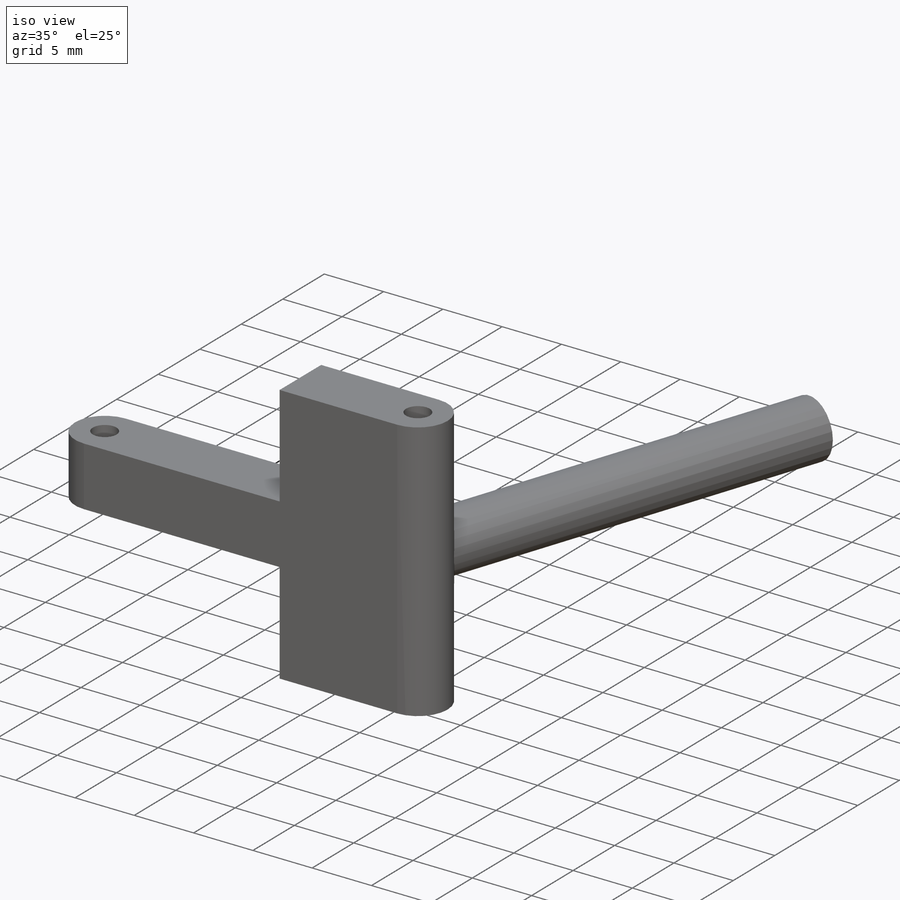
[diagram: iso view]
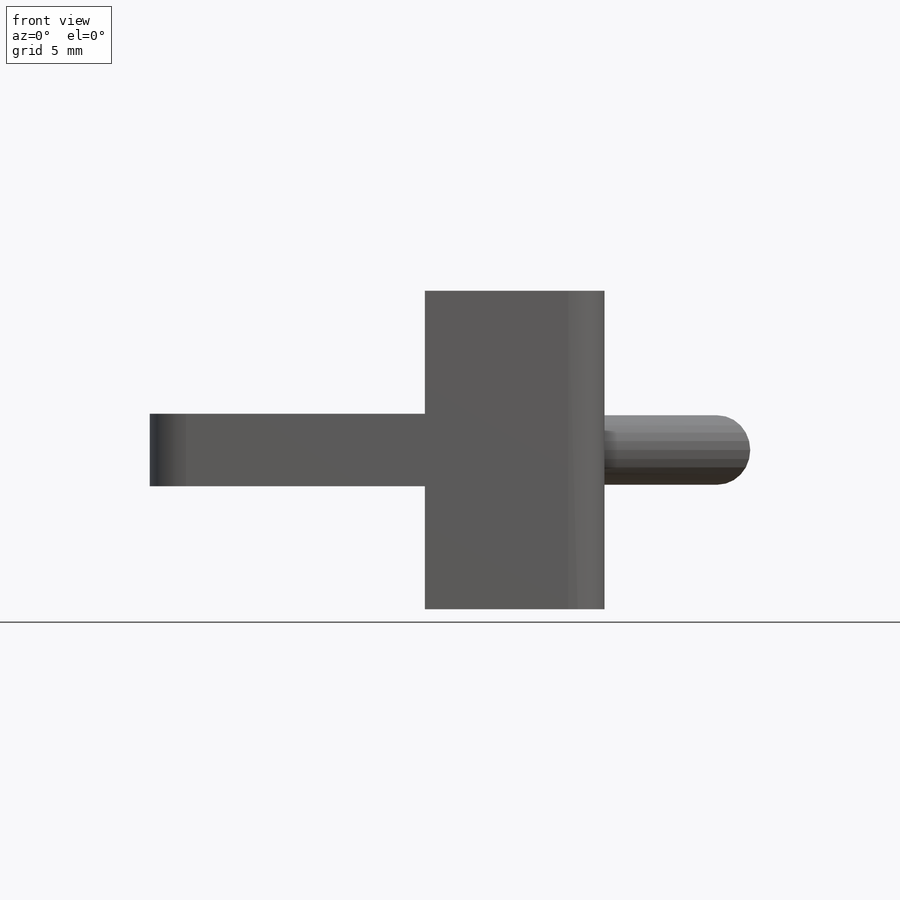
[diagram: front view]
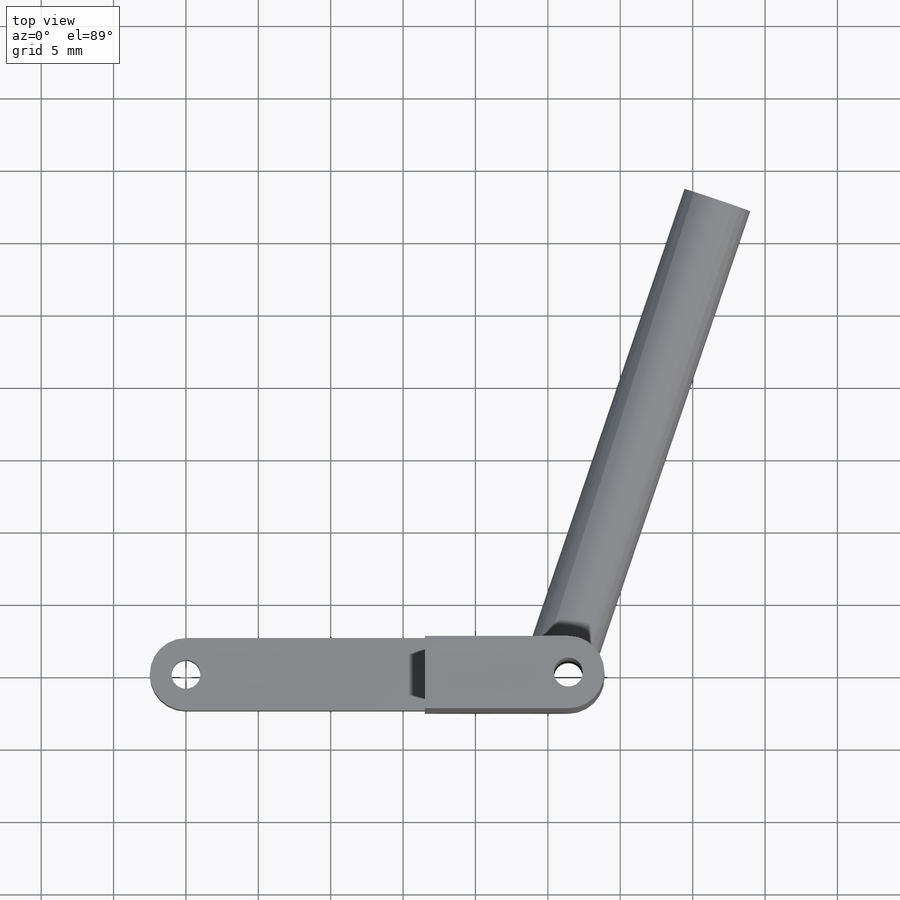
[diagram: top view]
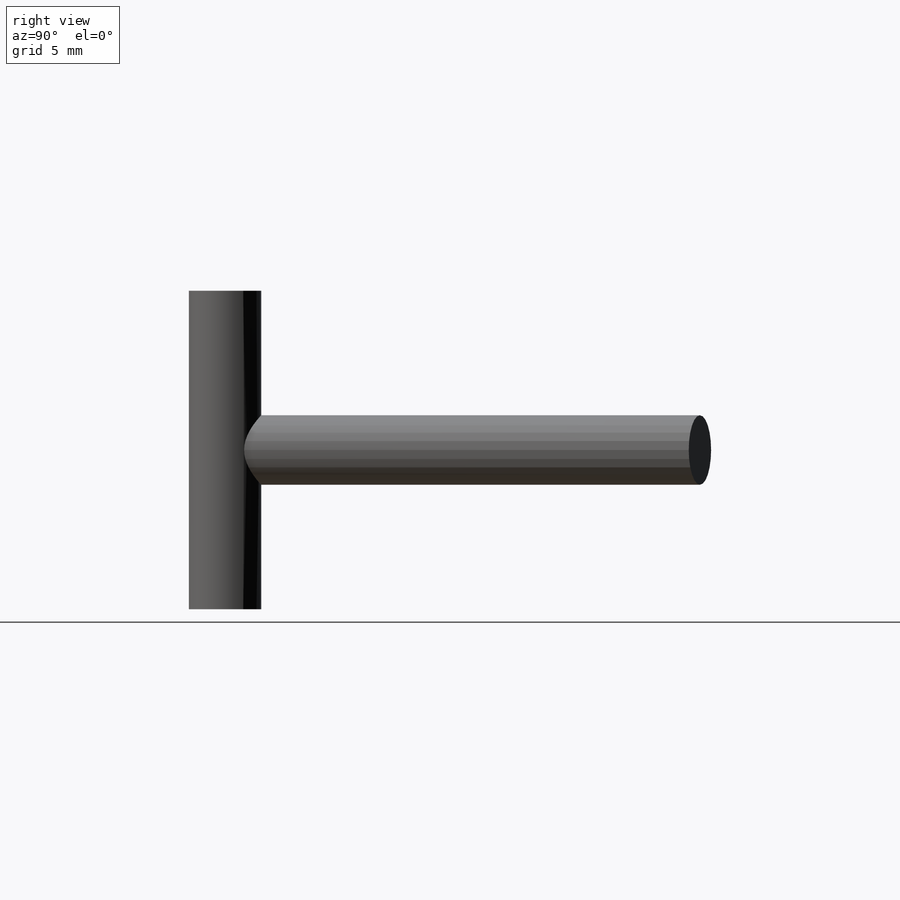
[diagram: right view]
SOLIDWORKS PART (.sldprt)
format: sldprt  version: not decoded by parser v0  size: 185,344 bytes
history: native  units: mm
features: sketch x4, extrude x2, cut_extrude x2, plane x2, material x1 (+13 scaffold rows collapsed)
feature tree (24):
  scaffold x13  (default folders/planes/origin — collapsed)
  material  "Material <not specified>"
  sketch  "Sketch1"  dims[D2=2.5mm D1=26.41mm D3=0.0mm]
  extrude  "Boss-Extrude1"  Depth=22mm
  sketch  "Sketch2"  dims[c1.D1=~2.228836mm c1.D2=2.0mm c1.D3=2.0mm c2.D1=0.0mm]
  cut_extrude  "Cut-Extrude1"  Depth=22mm
  plane  "Plane1"  Offset=2.5mm
  sketch  "Sketch3"  dims[D1=8.5mm D2=8.5mm D3=5.0mm]
  cut_extrude  "Cut-Extrude7"  Depth=19mm
  plane  "Plane3"
  sketch  "Sketch5"  dims[D1=4.8mm]
  extrude  "Boss-Extrude3"  Depth=32mm
decode coverage: 8 of 8 modeling features carry decoded parameters
note: ~ marks probable driven/reference dimensions
note: suppression state not decoded; provenance and decode notes live in map.json
